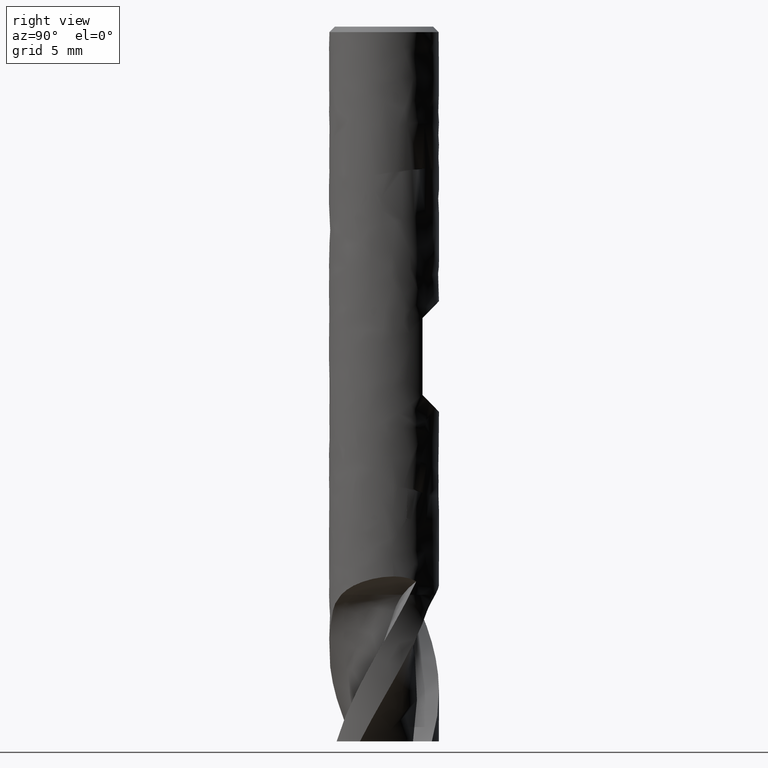
[diagram: clean part render]
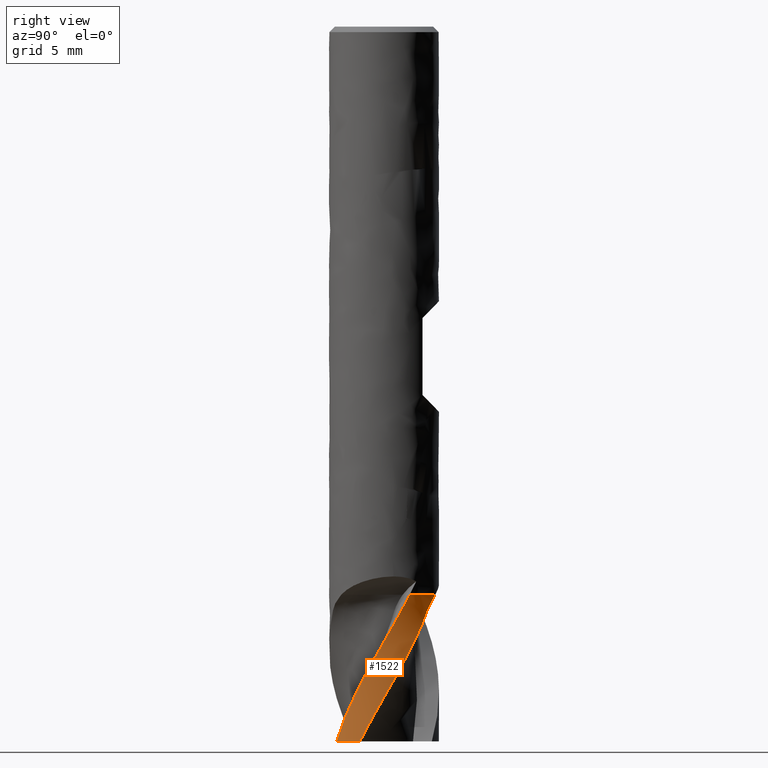
[diagram: same view with one face highlighted and labeled with its STEP entity id]
A machine part, right view. The second image highlights one B-rep face of the part: STEP entity #1522.
In plain terms, the highlighted face is a freeform B-spline surface patch.
Its self-contained STEP definition (entity closure, byte-faithful):
#1032 = VERTEX_POINT('', #1033);
#1033 = CARTESIAN_POINT('', (2.65178013950348, 1.40287636366677, -31.));
#1039 = EDGE_CURVE('', #1040, #1032, #1042, .T.);
#1040 = VERTEX_POINT('', #1041);
#1041 = CARTESIAN_POINT('', (1.08421758981709, 2.79722580746196, -31.));
#1042 = CIRCLE('', #1043, 3.);
#1043 = AXIS2_PLACEMENT_3D('', #1044, #1045, #1046);
#1044 = CARTESIAN_POINT('', (-3.88578058618805E-16, 3.73007052930991E-15, -31.));
#1045 = DIRECTION('', (3.74939945665464E-33, 6.12323399573677E-17, -1.));
#1046 = DIRECTION('', (-1., -5.49390323586469E-16, -3.73898545197895E-32));
#1367 = EDGE_CURVE('', #1040, #1368, #1370, .T.);
#1368 = VERTEX_POINT('', #1369);
#1369 = CARTESIAN_POINT('', (2.69791948437325, -1.31195672788366, -39.));
#1370 = B_SPLINE_CURVE_WITH_KNOTS('', 3, (#1371, #1372, #1373, #1374, #1375, #1376, #1377, #1378, #1379, #1380, #1381, #1382, #1383, #1384, #1385, #1386, #1387, #1388, #1389, #1390, #1391, #1392, #1393, #1394, #1395, #1396, #1397, #1398, #1399, #1400, #1401, #1402, #1403, #1404, #1405, #1406, #1407, #1408, #1409, #1410, #1411, #1412, #1413, #1414, #1415, #1416, #1417, #1418, #1419, #1420, #1421, #1422, #1423, #1424, #1425, #1426, #1427, #1428, #1429, #1430, #1431, #1432, #1433, #1434, #1435, #1436, #1437, #1438, #1439, #1440, #1441, #1442, #1443, #1444, #1445, #1446, #1447, #1448, #1449, #1450, #1451, #1452, #1453, #1454, #1455, #1456, #1457, #1458, #1459, #1460, #1461, #1462, #1463, #1464, #1465, #1466, #1467, #1468, #1469, #1470, #1471, #1472, #1473, #1474, #1475, #1476, #1477, #1478, #1479), .UNSPECIFIED., .F., .U., (4, 3, 3, 3, 3, 3, 3, 3, 3, 3, 3, 3, 3, 3, 3, 3, 3, 3, 3, 3, 3, 3, 3, 3, 3, 3, 3, 3, 3, 3, 3, 3, 3, 3, 3, 3, 4), (3.40503989997963, 3.47761742576379, 3.60844895575092, 3.73933193930797, 3.87029548682506, 4.00135525134359, 4.13252397006161, 4.26380986134629, 4.39521366195404, 4.45361228317764, 4.54123511677125, 4.62883266868287, 4.71640572541453, 4.80395985829023, 4.89150456706646, 4.97905219120592, 5.11039865042747, 5.24182608262073, 5.37325321147449, 5.57039665974011, 5.76744650999015, 6.06284872158619, 6.35831367010135, 6.55534831111203, 6.99852828386313, 7.44154870593723, 7.88452144376341, 8.32742560285122, 8.99121331858849, 9.65475852505677, 10.0973570071098, 10.1362788338178, 10.8030576914267, 11.4695350922493, 12.135728580251, 12.8016524448311, 12.8710669454147), .UNSPECIFIED.);
#1371 = CARTESIAN_POINT('', (1.08421758981709, 2.79722580746196, -31.));
#1372 = CARTESIAN_POINT('', (1.1029589125167, 2.78996158457615, -31.0134637053384));
#1373 = CARTESIAN_POINT('', (1.12153627957443, 2.78254415764813, -31.0270823744474));
#1374 = CARTESIAN_POINT('', (1.13993452194367, 2.77498635774716, -31.0408541503128));
#1375 = CARTESIAN_POINT('', (1.17310002562038, 2.76136232587645, -31.0656797762574));
#1376 = CARTESIAN_POINT('', (1.20570355479477, 2.7472735123234, -31.0910175691423));
#1377 = CARTESIAN_POINT('', (1.23768759799336, 2.73278784573117, -31.1168838217919));
#1378 = CARTESIAN_POINT('', (1.2696842199121, 2.71829648219983, -31.1427602471503));
#1379 = CARTESIAN_POINT('', (1.30107479970759, 2.7034015576562, -31.1691767129285));
#1380 = CARTESIAN_POINT('', (1.33179824781887, 2.68818031893447, -31.1961536743672));
#1381 = CARTESIAN_POINT('', (1.36254060749969, 2.67294971090258, -31.2231472412559));
#1382 = CARTESIAN_POINT('', (1.39262918901622, 2.65738525087257, -31.2507142841181));
#1383 = CARTESIAN_POINT('', (1.42199744243549, 2.64157590723926, -31.2788796369141));
#1384 = CARTESIAN_POINT('', (1.45138727228068, 2.6257549487126, -31.3070656823826));
#1385 = CARTESIAN_POINT('', (1.48007046279382, 2.60968065287748, -31.3358648125052));
#1386 = CARTESIAN_POINT('', (1.50797186447845, 2.59345731716205, -31.3653068428102));
#1387 = CARTESIAN_POINT('', (1.53589646149611, 2.57722049446562, -31.3947733492224));
#1388 = CARTESIAN_POINT('', (1.56305374755022, 2.56082499643363, -31.4249000989683));
#1389 = CARTESIAN_POINT('', (1.58935513967613, 2.54439584970285, -31.4557223707851));
#1390 = CARTESIAN_POINT('', (1.61568002674544, 2.52795202687163, -31.4865721760317));
#1391 = CARTESIAN_POINT('', (1.64116497254438, 2.51146328233507, -31.5181386740175));
#1392 = CARTESIAN_POINT('', (1.6657004630433, 2.49508355920545, -31.5504624090808));
#1393 = CARTESIAN_POINT('', (1.69025798913986, 2.47868912526383, -31.5828151744511));
#1394 = CARTESIAN_POINT('', (1.71388452696581, 2.46239004933716, -31.6159523175281));
#1395 = CARTESIAN_POINT('', (1.73643797292068, 2.44638164769914, -31.6499173603208));
#1396 = CARTESIAN_POINT('', (1.74646120011437, 2.43926717628103, -31.6650121419003));
#1397 = CARTESIAN_POINT('', (1.75627512887817, 2.43220853861588, -31.6802750534202));
#1398 = CARTESIAN_POINT('', (1.76586435777499, 2.42522639560518, -31.6957097411725));
#1399 = CARTESIAN_POINT('', (1.78025229006366, 2.41475020383328, -31.7188683543067));
#1400 = CARTESIAN_POINT('', (1.79413751531616, 2.40444420297993, -31.7424251836869));
#1401 = CARTESIAN_POINT('', (1.80752463002917, 2.394338052957, -31.7663361736969));
#1402 = CARTESIAN_POINT('', (1.82090788217847, 2.38423481884606, -31.7902402647056));
#1403 = CARTESIAN_POINT('', (1.83379937453263, 2.37432693025387, -31.8145096354948));
#1404 = CARTESIAN_POINT('', (1.84622504425696, 2.36462535847868, -31.8390875642427));
#1405 = CARTESIAN_POINT('', (1.85864723935203, 2.35492649958463, -31.8636586201868));
#1406 = CARTESIAN_POINT('', (1.8706087562518, 2.34543023126228, -31.8885479063757));
#1407 = CARTESIAN_POINT('', (1.88216118375993, 2.33612270190336, -31.9136880515809));
#1408 = CARTESIAN_POINT('', (1.8937111148784, 2.32681718382909, -31.9388227641964));
#1409 = CARTESIAN_POINT('', (1.90485572031787, 2.31769762631606, -31.964215688841));
#1410 = CARTESIAN_POINT('', (1.91567370136932, 2.30872134955308, -31.989791949224));
#1411 = CARTESIAN_POINT('', (1.92649051800139, 2.29974603897322, -32.0153654566448));
#1412 = CARTESIAN_POINT('', (1.93698313269452, 2.2909121904901, -32.0411268731681));
#1413 = CARTESIAN_POINT('', (1.94725479477815, 2.28214784013077, -32.0669966069255));
#1414 = CARTESIAN_POINT('', (1.95752679892273, 2.27338319790612, -32.0928672021817));
#1415 = CARTESIAN_POINT('', (1.96757925098195, 2.26468697635725, -32.1188481695072));
#1416 = CARTESIAN_POINT('', (1.97753306738958, 2.25596165024602, -32.1448560710866));
#1417 = CARTESIAN_POINT('', (1.99246663701793, 2.24287116719149, -32.1838753570787));
#1418 = CARTESIAN_POINT('', (2.0071813304323, 2.22971552398983, -32.2229587495367));
#1419 = CARTESIAN_POINT('', (2.02210618048562, 2.21609715374617, -32.261800296501));
#1420 = CARTESIAN_POINT('', (2.03704023146806, 2.2024703879971, -32.3006657886519));
#1421 = CARTESIAN_POINT('', (2.05218667855315, 2.18837224897906, -32.3392871878382));
#1422 = CARTESIAN_POINT('', (2.06744272584587, 2.17386305349419, -32.3777056387576));
#1423 = CARTESIAN_POINT('', (2.08269873792705, 2.15935389149709, -32.4161240010057));
#1424 = CARTESIAN_POINT('', (2.09806610850816, 2.14443194936941, -32.4543440414873));
#1425 = CARTESIAN_POINT('', (2.11344890810348, 2.12916267880974, -32.4924156988913));
#1426 = CARTESIAN_POINT('', (2.13652342995181, 2.10625845289468, -32.5495239830582));
#1427 = CARTESIAN_POINT('', (2.15963461904569, 2.08256750563963, -32.606304639755));
#1428 = CARTESIAN_POINT('', (2.18248438617708, 2.05833959882557, -32.6629552347848));
#1429 = CARTESIAN_POINT('', (2.20532330489895, 2.03412319472194, -32.7195789337483));
#1430 = CARTESIAN_POINT('', (2.2279039257949, 2.0093667706988, -32.7760783494518));
#1431 = CARTESIAN_POINT('', (2.24994863706543, 1.98437172187255, -32.8326784551016));
#1432 = CARTESIAN_POINT('', (2.28299639860926, 1.94690103771391, -32.9175290467884));
#1433 = CARTESIAN_POINT('', (2.31486367558965, 1.90888614541008, -33.0026080361316));
#1434 = CARTESIAN_POINT('', (2.34565935826662, 1.87026259519252, -33.0877882974662));
#1435 = CARTESIAN_POINT('', (2.37646158126786, 1.83163084218415, -33.172986649211));
#1436 = CARTESIAN_POINT('', (2.40619770786897, 1.79238338704391, -33.2582997660662));
#1437 = CARTESIAN_POINT('', (2.43496673519197, 1.75240891304186, -33.3435894660158));
#1438 = CARTESIAN_POINT('', (2.45415173496708, 1.72575141551409, -33.4004660109187));
#1439 = CARTESIAN_POINT('', (2.47291471891139, 1.69875688494742, -33.4573295233247));
#1440 = CARTESIAN_POINT('', (2.49124273055466, 1.67143939688479, -33.5141755133861));
#1441 = CARTESIAN_POINT('', (2.53246699274013, 1.6099955636932, -33.6420363006934));
#1442 = CARTESIAN_POINT('', (2.57148164612261, 1.54691968751647, -33.7698545014037));
#1443 = CARTESIAN_POINT('', (2.6080597275569, 1.48257359260707, -33.8977012432056));
#1444 = CARTESIAN_POINT('', (2.64462464039601, 1.41825066314655, -34.0255019584822));
#1445 = CARTESIAN_POINT('', (2.67875691611819, 1.35266624752428, -34.1533927595073));
#1446 = CARTESIAN_POINT('', (2.71038720098913, 1.28600202982513, -34.2813101628896));
#1447 = CARTESIAN_POINT('', (2.74201408135257, 1.21934498749064, -34.4092137979559));
#1448 = CARTESIAN_POINT('', (2.77115562398398, 1.15157458645673, -34.5371805245974));
#1449 = CARTESIAN_POINT('', (2.79774790895294, 1.08286963109576, -34.6651463020789));
#1450 = CARTESIAN_POINT('', (2.82433607704246, 1.01417531227911, -34.7930922685634));
#1451 = CARTESIAN_POINT('', (2.84837948117786, 0.944533767287181, -34.9210870740968));
#1452 = CARTESIAN_POINT('', (2.86981154099419, 0.874174879058294, -35.0490960742449));
#1453 = CARTESIAN_POINT('', (2.9019321199888, 0.768726861149734, -35.2409452589018));
#1454 = CARTESIAN_POINT('', (2.92820245468424, 0.661604676515812, -35.4329488400303));
#1455 = CARTESIAN_POINT('', (2.94849070610625, 0.553536408924984, -35.6249560329254));
#1456 = CARTESIAN_POINT('', (2.96877154538594, 0.445507623168413, -35.8168930776047));
#1457 = CARTESIAN_POINT('', (2.98308970481225, 0.336451027679032, -36.0089756898587));
#1458 = CARTESIAN_POINT('', (2.99139084753794, 0.227114062240594, -36.2010638965042));
#1459 = CARTESIAN_POINT('', (2.99692788274501, 0.15418402753669, -36.3291907337608));
#1460 = CARTESIAN_POINT('', (2.99979249382229, 0.0810985663314765, -36.4573723208488));
#1461 = CARTESIAN_POINT('', (2.99998912322437, 0.00807839932013406, -36.5855672961509));
#1462 = CARTESIAN_POINT('', (3.0000064146879, 0.0016570526552871, -36.5968406800775));
#1463 = CARTESIAN_POINT('', (3.00000308789866, -0.00476389347848745, -36.6081143426265));
#1464 = CARTESIAN_POINT('', (2.99997915186515, -0.011184291415392, -36.6193882547488));
#1465 = CARTESIAN_POINT('', (2.99956909811295, -0.121173620382177, -36.8125242630373));
#1466 = CARTESIAN_POINT('', (2.99310143163114, -0.231045657268868, -37.0058078686011));
#1467 = CARTESIAN_POINT('', (2.98066449721654, -0.340057576055642, -37.1990979680709));
#1468 = CARTESIAN_POINT('', (2.96823318565312, -0.449020209562396, -37.3923006793286));
#1469 = CARTESIAN_POINT('', (2.94982896095236, -0.557204535563072, -37.585650561718));
#1470 = CARTESIAN_POINT('', (2.92561969306245, -0.663889607965939, -37.7790074527767));
#1471 = CARTESIAN_POINT('', (2.90142073808267, -0.770529233576731, -37.9722819757006));
#1472 = CARTESIAN_POINT('', (2.87140337808807, -0.87575128133523, -38.1657015845539));
#1473 = CARTESIAN_POINT('', (2.8358132651091, -0.978858072159216, -38.3591310909073));
#1474 = CARTESIAN_POINT('', (2.80023755624576, -1.08192313335625, -38.5524823120083));
#1475 = CARTESIAN_POINT('', (2.7590702172835, -1.1829458420404, -38.7459836997586));
#1476 = CARTESIAN_POINT('', (2.71261803162245, -1.28128974651271, -38.9394866803619));
#1477 = CARTESIAN_POINT('', (2.70777595366102, -1.2915409079104, -38.9596570233612));
#1478 = CARTESIAN_POINT('', (2.70287631393265, -1.30176345948935, -38.9798281908135));
#1479 = CARTESIAN_POINT('', (2.69791948437325, -1.31195672788366, -39.));
#1522 = ADVANCED_FACE('', (#1523), #1636, .T.);
#1523 = FACE_OUTER_BOUND('', #1524, .T.);
#1524 = EDGE_LOOP('', (#1525, #1526, #1628, #1635));
#1525 = ORIENTED_EDGE('', *, *, #1039, .T.);
#1526 = ORIENTED_EDGE('', *, *, #1527, .T.);
#1527 = EDGE_CURVE('', #1032, #1528, #1530, .T.);
#1528 = VERTEX_POINT('', #1529);
#1529 = CARTESIAN_POINT('', (1.52468476033425, -2.58366723507585, -39.));
#1530 = B_SPLINE_CURVE_WITH_KNOTS('', 3, (#1531, #1532, #1533, #1534, #1535, #1536, #1537, #1538, #1539, #1540, #1541, #1542, #1543, #1544, #1545, #1546, #1547, #1548, #1549, #1550, #1551, #1552, #1553, #1554, #1555, #1556, #1557, #1558, #1559, #1560, #1561, #1562, #1563, #1564, #1565, #1566, #1567, #1568, #1569, #1570, #1571, #1572, #1573, #1574, #1575, #1576, #1577, #1578, #1579, #1580, #1581, #1582, #1583, #1584, #1585, #1586, #1587, #1588, #1589, #1590, #1591, #1592, #1593, #1594, #1595, #1596, #1597, #1598, #1599, #1600, #1601, #1602, #1603, #1604, #1605, #1606, #1607, #1608, #1609, #1610, #1611, #1612, #1613, #1614, #1615, #1616, #1617, #1618, #1619, #1620, #1621, #1622, #1623, #1624, #1625, #1626, #1627), .UNSPECIFIED., .F., .U., (4, 3, 3, 3, 3, 3, 3, 3, 3, 3, 3, 3, 3, 3, 3, 3, 3, 3, 3, 3, 3, 3, 3, 3, 3, 3, 3, 3, 3, 3, 3, 3, 4), (0.845078850283558, 0.91937926567868, 1.00693931235693, 1.13828400592833, 1.33540682659756, 1.46683118278683, 1.59827610052119, 1.65667285176064, 1.78806992480854, 1.9193579792773, 2.05059575475087, 2.18184235817023, 2.26939187005176, 2.32777724736753, 2.52482915734753, 2.72185893721554, 2.91881007695306, 3.00634940108574, 3.30149193088526, 3.59670505573072, 3.72801288612655, 3.78638612114345, 3.84478691181139, 4.28897318905193, 4.95551492702064, 5.62182241058851, 6.28784242430268, 6.95360241158249, 7.61910432181197, 8.28435488749657, 8.94935719296886, 9.6141136533892, 10.0590532441608), .UNSPECIFIED.);
#1531 = CARTESIAN_POINT('', (2.65178013950348, 1.40287636366677, -31.));
#1532 = CARTESIAN_POINT('', (2.65751994701813, 1.39202672077155, -31.0215112643788));
#1533 = CARTESIAN_POINT('', (2.66319031774882, 1.38114722329207, -31.0430264382877));
#1534 = CARTESIAN_POINT('', (2.66879028186562, 1.37024028236642, -31.0645455850637));
#1535 = CARTESIAN_POINT('', (2.67538961400739, 1.35738689182361, -31.0899050327351));
#1536 = CARTESIAN_POINT('', (2.68189126345756, 1.34449520038901, -31.1152707052813));
#1537 = CARTESIAN_POINT('', (2.68829407769576, 1.3315686057526, -31.1406433192638));
#1538 = CARTESIAN_POINT('', (2.69789863714969, 1.31217803121717, -31.1787035800226));
#1539 = CARTESIAN_POINT('', (2.70728232592541, 1.29270635690717, -31.2167789721682));
#1540 = CARTESIAN_POINT('', (2.71645631422693, 1.27313200136382, -31.2548513760305));
#1541 = CARTESIAN_POINT('', (2.73022468508082, 1.2437547035639, -31.3119906439746));
#1542 = CARTESIAN_POINT('', (2.74352255378944, 1.2141432444032, -31.3691254363431));
#1543 = CARTESIAN_POINT('', (2.75637340366404, 1.18423209700359, -31.426201425357));
#1544 = CARTESIAN_POINT('', (2.76494123292663, 1.16428994481375, -31.4642547318416));
#1545 = CARTESIAN_POINT('', (2.77331030456763, 1.1442139985432, -31.5022834821385));
#1546 = CARTESIAN_POINT('', (2.78148210023363, 1.12399169306535, -31.5402759996043));
#1547 = CARTESIAN_POINT('', (2.78965517438978, 1.10376622377633, -31.5782744610587));
#1548 = CARTESIAN_POINT('', (2.79763116685599, 1.08339352782394, -31.6162377984082));
#1549 = CARTESIAN_POINT('', (2.80540685801481, 1.06286987021154, -31.6541596908614));
#1550 = CARTESIAN_POINT('', (2.80886134762265, 1.05375186893181, -31.6710071685599));
#1551 = CARTESIAN_POINT('', (2.81227636376907, 1.04460387607456, -31.6878465831621));
#1552 = CARTESIAN_POINT('', (2.81565107436721, 1.03542697831126, -31.7046782445897));
#1553 = CARTESIAN_POINT('', (2.82324442648985, 1.01477826960461, -31.7425507460418));
#1554 = CARTESIAN_POINT('', (2.83062917000597, 0.993993210246564, -31.7803914877478));
#1555 = CARTESIAN_POINT('', (2.83776584556418, 0.973182925122213, -31.8182643596877));
#1556 = CARTESIAN_POINT('', (2.84489659990807, 0.952389906042402, -31.8561058089589));
#1557 = CARTESIAN_POINT('', (2.85178023872008, 0.931571405031041, -31.8939807733452));
#1558 = CARTESIAN_POINT('', (2.85840261644222, 0.910787836060788, -31.9319196710239));
#1559 = CARTESIAN_POINT('', (2.86502245801209, 0.890012226512039, -31.9698440393559));
#1560 = CARTESIAN_POINT('', (2.87138184288168, 0.869271047979684, -32.0078336557547));
#1561 = CARTESIAN_POINT('', (2.87748684045423, 0.848569079693992, -32.0458844570821));
#1562 = CARTESIAN_POINT('', (2.88359224869047, 0.827865718853047, -32.0839378179652));
#1563 = CARTESIAN_POINT('', (2.8894438704496, 0.807200932966757, -32.1220535906815));
#1564 = CARTESIAN_POINT('', (2.89506214019977, 0.78652094974129, -32.160194602377));
#1565 = CARTESIAN_POINT('', (2.89880986975185, 0.772726136085636, -32.1856369899863));
#1566 = CARTESIAN_POINT('', (2.90245412081249, 0.758923093574581, -32.211090358896));
#1567 = CARTESIAN_POINT('', (2.90600302953815, 0.745081466898151, -32.236535831296));
#1568 = CARTESIAN_POINT('', (2.90836974033475, 0.735850706168599, -32.2535050122215));
#1569 = CARTESIAN_POINT('', (2.91069445249616, 0.726601016820563, -32.2704698229174));
#1570 = CARTESIAN_POINT('', (2.91297832899312, 0.717326463206571, -32.2874264714168));
#1571 = CARTESIAN_POINT('', (2.92068646151833, 0.68602464436305, -32.3446555264863));
#1572 = CARTESIAN_POINT('', (2.92792653228295, 0.654449740268381, -32.4018009356281));
#1573 = CARTESIAN_POINT('', (2.93467801708512, 0.62262744561847, -32.4588635585109));
#1574 = CARTESIAN_POINT('', (2.94142874365502, 0.59080872480321, -32.5159197729187));
#1575 = CARTESIAN_POINT('', (2.94769084457448, 0.558740426743624, -32.5728971854274));
#1576 = CARTESIAN_POINT('', (2.95343749271416, 0.526504488708584, -32.629829032756));
#1577 = CARTESIAN_POINT('', (2.95918184720484, 0.494281416943686, -32.6867381569821));
#1578 = CARTESIAN_POINT('', (2.96441095244962, 0.461888510618798, -32.7436056230668));
#1579 = CARTESIAN_POINT('', (2.96910086915246, 0.42946481671742, -32.8004974602472));
#1580 = CARTESIAN_POINT('', (2.97118540717012, 0.415053383232982, -32.8257843054113));
#1581 = CARTESIAN_POINT('', (2.97316327403218, 0.400638723273503, -32.8510783317642));
#1582 = CARTESIAN_POINT('', (2.97503442353141, 0.38622555431137, -32.8763808733796));
#1583 = CARTESIAN_POINT('', (2.98134308312306, 0.337630946207426, -32.9616894614538));
#1584 = CARTESIAN_POINT('', (2.98644204035799, 0.289037080043989, -33.0470962374708));
#1585 = CARTESIAN_POINT('', (2.99035051999529, 0.240424140975686, -33.1325380086596));
#1586 = CARTESIAN_POINT('', (2.99425993450057, 0.191799574194261, -33.2180002166381));
#1587 = CARTESIAN_POINT('', (2.99697946660757, 0.143148355267187, -33.3035099349205));
#1588 = CARTESIAN_POINT('', (2.99851395917122, 0.0944141761354948, -33.3889853473263));
#1589 = CARTESIAN_POINT('', (2.99919648603854, 0.0727377031424504, -33.4270039515502));
#1590 = CARTESIAN_POINT('', (2.99964428342476, 0.0510426952102296, -33.4650169331619));
#1591 = CARTESIAN_POINT('', (2.99985655365907, 0.0293369642040015, -33.5030243768317));
#1592 = CARTESIAN_POINT('', (2.99995091893978, 0.0196876254446873, -33.5199206840438));
#1593 = CARTESIAN_POINT('', (2.99999874295708, 0.0100360875428792, -33.5368160595975));
#1594 = CARTESIAN_POINT('', (2.99999997554321, 0.000383067510860016, -33.553710527433));
#1595 = CARTESIAN_POINT('', (3.0000012087112, -0.0092745093227738, -33.5706129704658));
#1596 = CARTESIAN_POINT('', (2.99995580641094, -0.018933625134911, -33.5875146020419));
#1597 = CARTESIAN_POINT('', (2.9998637317446, -0.0285935475826273, -33.60441545388));
#1598 = CARTESIAN_POINT('', (2.99916342781378, -0.102065241054728, -33.7329603994928));
#1599 = CARTESIAN_POINT('', (2.9957583515081, -0.175599717608482, -33.8614830749937));
#1600 = CARTESIAN_POINT('', (2.98966080277966, -0.248853941746902, -33.990009421535));
#1601 = CARTESIAN_POINT('', (2.98051087867112, -0.358778539539756, -34.1828748448673));
#1602 = CARTESIAN_POINT('', (2.96529693492338, -0.46815523421739, -34.3758604067083));
#1603 = CARTESIAN_POINT('', (2.94411583849892, -0.57635226164328, -34.5687566851554));
#1604 = CARTESIAN_POINT('', (2.922942186117, -0.684511263498696, -34.7615851706953));
#1605 = CARTESIAN_POINT('', (2.89578560735695, -0.791565284743845, -34.9544719824688));
#1606 = CARTESIAN_POINT('', (2.86283698779662, -0.896752129244179, -35.1472921948074));
#1607 = CARTESIAN_POINT('', (2.82990258349737, -1.0018935922239, -35.3400292173281));
#1608 = CARTESIAN_POINT('', (2.79115734617745, -1.10525075953305, -35.5328420261697));
#1609 = CARTESIAN_POINT('', (2.74686216571279, -1.20612944685706, -35.7255812009775));
#1610 = CARTESIAN_POINT('', (2.70258427889938, -1.30696874929049, -35.9182451268748));
#1611 = CARTESIAN_POINT('', (2.65272795006649, -1.40540518639188, -36.1109799189524));
#1612 = CARTESIAN_POINT('', (2.59763320631043, -1.50076704570476, -36.3036432769553));
#1613 = CARTESIAN_POINT('', (2.54255981963385, -1.59609193868166, -36.496231950399));
#1614 = CARTESIAN_POINT('', (2.48221124485243, -1.68841558741756, -36.6888927670214));
#1615 = CARTESIAN_POINT('', (2.41699703670325, -1.77711151157369, -36.8814815786733));
#1616 = CARTESIAN_POINT('', (2.35180745843899, -1.8657739373486, -37.0739976540242));
#1617 = CARTESIAN_POINT('', (2.28170778595435, -1.95087680586284, -37.2665854511645));
#1618 = CARTESIAN_POINT('', (2.20717386598088, -2.03184239677466, -37.4591014608591));
#1619 = CARTESIAN_POINT('', (2.13266776080043, -2.11277777270311, -37.6515456268488));
#1620 = CARTESIAN_POINT('', (2.05367586990578, -2.18963858466012, -37.8440616386716));
#1621 = CARTESIAN_POINT('', (1.97073353242675, -2.26190392018953, -38.0365057649618));
#1622 = CARTESIAN_POINT('', (1.88782185794408, -2.33414253990905, -38.2288787464818));
#1623 = CARTESIAN_POINT('', (1.80090163635257, -2.40184218091909, -38.421323333699));
#1624 = CARTESIAN_POINT('', (1.71056280415619, -2.46454354658977, -38.6136968300643));
#1625 = CARTESIAN_POINT('', (1.65009656513262, -2.5065112770947, -38.7424576467609));
#1626 = CARTESIAN_POINT('', (1.58807518419517, -2.5462590069961, -38.8712402119587));
#1627 = CARTESIAN_POINT('', (1.52468476033425, -2.58366723507585, -39.));
#1628 = ORIENTED_EDGE('', *, *, #1629, .F.);
#1629 = EDGE_CURVE('', #1368, #1528, #1630, .T.);
#1630 = CIRCLE('', #1631, 3.);
#1631 = AXIS2_PLACEMENT_3D('', #1632, #1633, #1634);
#1632 = CARTESIAN_POINT('', (1.46226578809531E-31, 2.38806125833734E-15, -39.));
#1633 = DIRECTION('', (3.74939945665464E-33, 6.12323399573677E-17, -1.));
#1634 = DIRECTION('', (-1., 6.12323399573677E-17, 0.));
#1635 = ORIENTED_EDGE('', *, *, #1367, .F.);
#1636 = (
   BOUNDED_SURFACE ()
   B_SPLINE_SURFACE (1, 2, ((#1637, #1638, #1639, #1640, #1641, #1642, #1643, #1644, #1645), (#1646, #1647, #1648, #1649, #1650, #1651, #1652, #1653, #1654)), .UNSPECIFIED., .F., .T., .U.)
   B_SPLINE_SURFACE_WITH_KNOTS ((2, 2), (3, 2, 2, 2, 3), (-0.566801619433198, -0.242914979757085), (0., 0.25, 0.5, 0.75, 1.), .UNSPECIFIED.)
   GEOMETRIC_REPRESENTATION_ITEM ()
   RATIONAL_B_SPLINE_SURFACE (((1., 0.707106781186548, 1., 0.707106781186548, 1., 0.707106781186548, 1., 0.707106781186548, 1.), (1., 0.707106781186547, 1., 0.707106781186547, 1., 0.707106781186547, 1., 0.707106781186547, 1.)))
   REPRESENTATION_ITEM ('')
   SURFACE ()
);
#1637 = CARTESIAN_POINT('', (-3., 2.57175827820944E-15, -39.));
#1638 = CARTESIAN_POINT('', (-3., 3., -39.));
#1639 = CARTESIAN_POINT('', (-2.22044604925031E-15, 3., -39.));
#1640 = CARTESIAN_POINT('', (3., 3.00000000000001, -39.));
#1641 = CARTESIAN_POINT('', (3., 6.23549425947246E-15, -39.));
#1642 = CARTESIAN_POINT('', (3., -2.99999999999999, -39.));
#1643 = CARTESIAN_POINT('', (1.81068397175691E-15, -3., -39.));
#1644 = CARTESIAN_POINT('', (-3., -3., -39.));
#1645 = CARTESIAN_POINT('', (-3., 2.57175827820944E-15, -39.));
#1646 = CARTESIAN_POINT('', (-3., 2.0818995585505E-15, -31.));
#1647 = CARTESIAN_POINT('', (-3., 3., -31.));
#1648 = CARTESIAN_POINT('', (-2.22044604925031E-15, 3., -31.));
#1649 = CARTESIAN_POINT('', (3., 3., -31.));
#1650 = CARTESIAN_POINT('', (3., 5.74563553981352E-15, -31.));
#1651 = CARTESIAN_POINT('', (3., -3., -31.));
#1652 = CARTESIAN_POINT('', (1.81068397175691E-15, -3., -31.));
#1653 = CARTESIAN_POINT('', (-3., -3., -31.));
#1654 = CARTESIAN_POINT('', (-3., 2.0818995585505E-15, -31.));